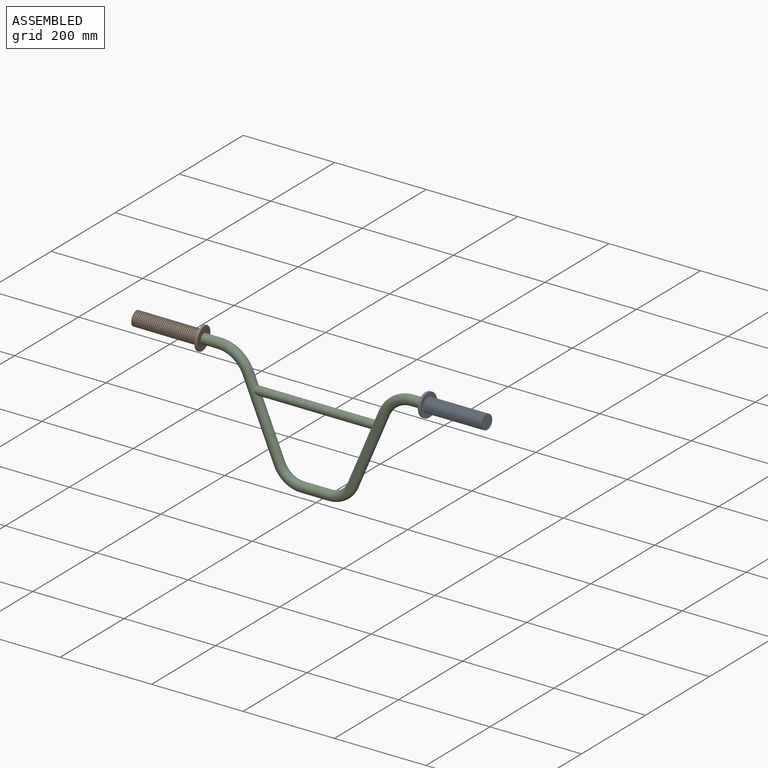
[diagram: assembled view]
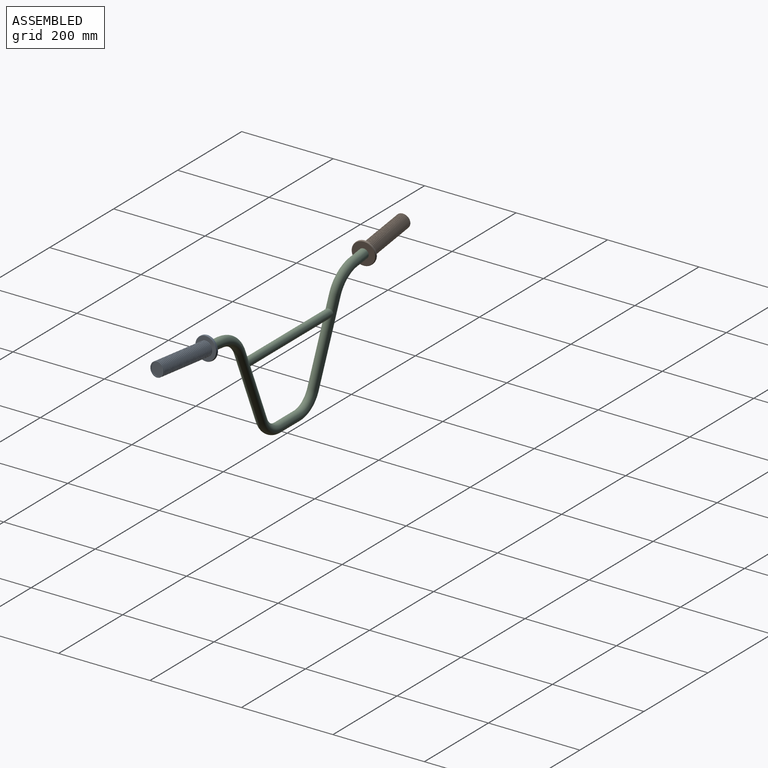
[diagram: assembled view, second angle]
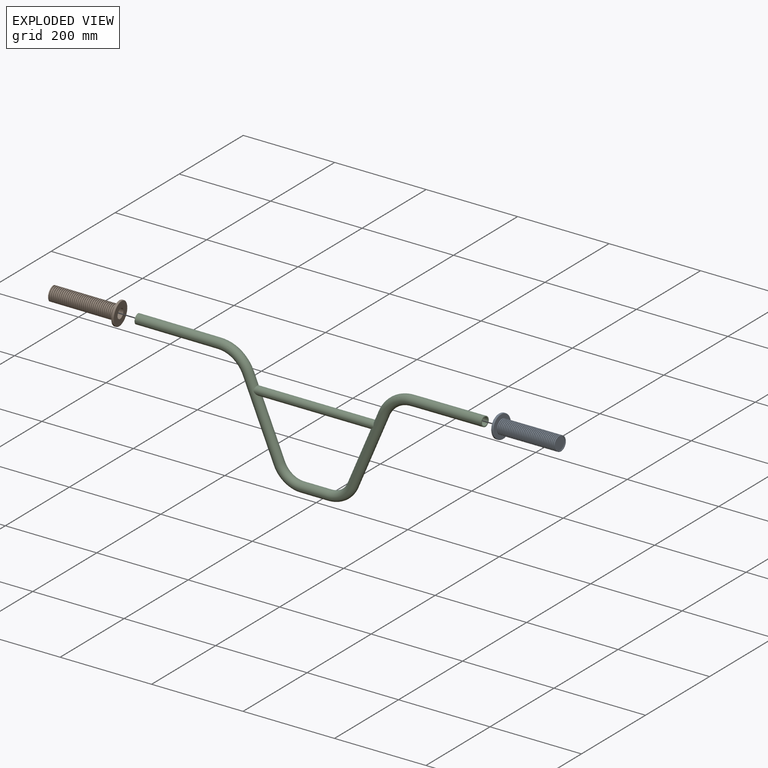
[diagram: exploded view]
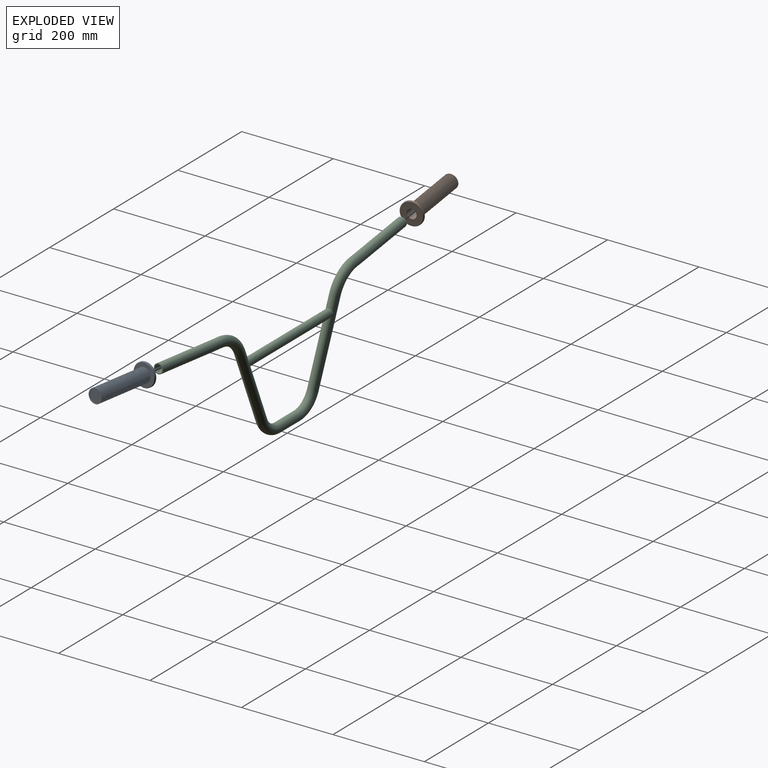
[diagram: exploded view, second angle]
FCSTD DOCUMENT  (FreeCAD 1.0R39285 (Git))
Label: Assably for handle and grip
License: All rights reserved
LicenseURL: https://en.wikipedia.org/wiki/All_rights_reserved
objects: App::Link×3, App::FeaturePython×3, Assembly::JointGroup×1, Assembly::AssemblyObject×1
EXTERNAL_REF file=Bike_Handlebar.FCStd obj=Part
EXTERNAL_REF file=Handle_Grip.FCStd obj=Body

FEATURE [App::Link] HandleBar
  LinkedObject = -> <external Bike_Handlebar.FCStd>#Part
FEATURE [App::FeaturePython] GroundedJoint  # Assembly grounded joint (typed FeaturePython)
  ObjectToGround = -> HandleBar
FEATURE [App::Link] Body
  LinkPlacement = pos=(243.707,-3.77464,237.857) rot=(0.997469,-0.069124,-0.016671;1.59141rad)
  LinkedObject = -> <external Handle_Grip.FCStd>#Body
  Placement = pos=(243.707,-3.77464,237.857) rot=(0.997469,-0.069124,-0.016671;1.59141rad)
FEATURE [App::Link] Body001
  LinkPlacement = pos=(-243.707,-3.77464,237.857) rot=(-0.049382,0.712598,-0.699832;3.11777rad)
  LinkedObject = -> <external Handle_Grip.FCStd>#Body
  Placement = pos=(-243.707,-3.77464,237.857) rot=(-0.049382,0.712598,-0.699832;3.11777rad)
FEATURE [App::FeaturePython] Joint  label="Fixed"  # Assembly joint (typed FeaturePython)
  Activated = true
  AngleMax = 0
  AngleMin = 0
  Detach1 = false
  Detach2 = false
  Distance = 0
  Distance2 = 0
  EnableAngleMax = false
  EnableAngleMin = false
  EnableLengthMax = false
  EnableLengthMin = false
  JointType = 0 (Fixed)
  LengthMax = 0
  LengthMin = 0
  Placement1 = pos=(137,0,-1.07e-14) rot=(-0.707107,0,0.707107;3.14159rad)
  Placement2 = pos=(380,-15.6987,245) rot=(-0.616816,-0.576865,0.535504;2.06595rad)
  Reference1 = -> Assembly [Body.Face5,Body.Face5]
  Reference2 = -> Assembly [HandleBar.Body.Face3,HandleBar.Body.Edge2]
FEATURE [App::FeaturePython] Joint001  label="Fixed001"  # Assembly joint (typed FeaturePython)
  Activated = true
  AngleMax = 0
  AngleMin = 0
  Detach1 = false
  Detach2 = false
  Distance = 0
  Distance2 = 0
  EnableAngleMax = false
  EnableAngleMin = false
  EnableLengthMax = false
  EnableLengthMin = false
  JointType = 0 (Fixed)
  LengthMax = 0
  LengthMin = 0
  Placement1 = pos=(137,0,0) rot=(-0.707107,0,0.707107;3.14159rad)
  Placement2 = pos=(-380,-15.6987,245) rot=(-0.529448,-0.589729,0.60984;2.10494rad)
  Reference1 = -> Assembly [Body001.Face5,Body001.Face5]
  Reference2 = -> Assembly [HandleBar.Body.Face27,HandleBar.Body.Edge2]
FEATURE [Assembly::JointGroup] Joints
  Group = -> [GroundedJoint,Joint,Joint001]
FEATURE [Assembly::AssemblyObject] Assembly
  Group = -> [Joints,HandleBar,GroundedJoint,Body,Body001,Joint,Joint001]
  Origin = -> Origin
  Type = Assembly

RESOLVED EXTERNAL PARTS (link-assembly join: the EXTERNAL_REF files above that resolve inside this repo's crawl, each included once):
---- part Bike_Handlebar.FCStd = doc fcstd_748c10e31682 ----
FCSTD DOCUMENT  (FreeCAD 1.0R39285 (Git))
Label: Bike_Handlebar
License: All rights reserved
LicenseURL: https://en.wikipedia.org/wiki/All_rights_reserved
objects: Sketcher::SketchObject×4, PartDesign::SubShapeBinder×3, PartDesign::Body×2, PartDesign::Pad×2, Part::FeaturePython×1, App::DocumentObjectGroup×1, PartDesign::AdditivePipe×1, PartDesign::Mirrored×1, App::Part×1
note: 25 computed .brp shape members not serialized (recipe doc carries the construction recipe); baked Part::Feature solids carry a one-line shape summary decoded from their .brp

FEATURE [Sketcher::SketchObject] Sketch  label="Front"
  ArcFitTolerance = 1e-06
  FullyConstrained = true
  MakeInternals = false
  Placement = pos=(0,0,0) rot=(1,0,0;1.5708rad)
  sketch-geometry (5):
    g0: LineSegment StartX=0 StartY=0 StartZ=0 EndX=30 EndY=6.7146e-12 EndZ=0
    g1: ArcOfCircle CenterX=30 CenterY=55 CenterZ=0 NormalX=0 NormalY=0 NormalZ=1 AngleXU=0 Radius=55 StartAngle=4.71239 EndAngle=5.88176
    g2: LineSegment StartX=80.6278 StartY=33.5098 StartZ=0 EndX=148.54 EndY=193.502 EndZ=0
    g3: ArcOfCircle CenterX=212.976 CenterY=166.151 CenterZ=0 NormalX=0 NormalY=0 NormalZ=1 AngleXU=0 Radius=70 StartAngle=1.62316 EndAngle=2.74017
    g4: LineSegment StartX=209.312 StartY=236.055 StartZ=0 EndX=380 EndY=245 EndZ=0
  constraints (13):
    c: Distance(g0) = 30
    c: Coincident(g0,g-1)
    c: PointOnObject(g0,g-1)
    c: Tangent(g0,g1) = -1.5708
    c: Tangent(g1,g2) = -1.5708
    c: Tangent(g2,g3) = 1.5708
    c: Tangent(g3,g4) = 1.5708
    c: DistanceX(g0,g4) = 380
    c: DistanceY(g0,g4) = 245
    c: Radius(g3) = 70
    c: Angle(g-1,g4) = 0.0523599
    c: Radius(g1) = 55
    c: Angle(g-1,g2) = 1.16937
FEATURE [Sketcher::SketchObject] Sketch001  label="Top"
  ArcFitTolerance = 1e-06
  ExternalGeometry = -> [Sketch]
  FullyConstrained = true
  MakeInternals = false
  sketch-geometry (3):
    g0: LineSegment StartX=0 StartY=0 StartZ=0 EndX=170 EndY=0 EndZ=0
    g1: ArcOfCircle CenterX=170 CenterY=-700 CenterZ=0 NormalX=0 NormalY=0 NormalZ=1 AngleXU=0 Radius=700 StartAngle=1.48353 EndAngle=1.5708
    g2: LineSegment StartX=231.009 StartY=-2.66371 StartZ=0 EndX=380 EndY=-15.6987 EndZ=0
  constraints (8):
    c: Coincident(g-1,g0)
    c: PointOnObject(g0,g-1)
    c: Tangent(g0,g1) = 1.5708
    c: Tangent(g1,g2) = 1.5708
    c: DistanceX(g0,g0) = 170
    c: Radius(g1) = 700
    c: Angle(g2,g-1) = 0.0872665
    c: Vertical(g2,g-3)
FEATURE [Part::FeaturePython] Mixed_curve  # WARN: FeaturePython — macro-defined, semantics opaque (R4)
  Active = false
  ApproxTolerance = 0.001
  Continuity = 5
  DegreeMax = 5
  DegreeMin = 3
  Direction1 = (0,0,0)
  Direction2 = (0,0,0)
  FillFace1 = false
  FillFace2 = false
  Parametrization = 0
  Samples = 100
  Shape1 = -> Sketch001
  Shape2 = -> Sketch
FEATURE [App::DocumentObjectGroup] Group  label="Sketches"
  Group = -> [Sketch,Sketch001,Mixed_curve]
FEATURE [Sketcher::SketchObject] Sketch002
  ArcFitTolerance = 1e-06
  AttachmentSupport = -> [YZ_Plane]
  FullyConstrained = true
  MakeInternals = false
  MapMode = 5
  Placement = pos=(0,0,0) rot=(0.57735,0.57735,0.57735;2.0944rad)
  sketch-geometry (2):
    g0: Circle CenterX=0 CenterY=0 CenterZ=0 NormalX=0 NormalY=0 NormalZ=1 AngleXU=0 Radius=10.5
    g1: Circle CenterX=0 CenterY=0 CenterZ=0 NormalX=0 NormalY=0 NormalZ=1 AngleXU=0 Radius=8.5
  constraints (4):
    c: Diameter(g0) = 21
    c: Coincident(g0,g-1)
    c: Diameter(g1) = 17
    c: Coincident(g1,g0)
FEATURE [PartDesign::SubShapeBinder] Binder
  BindCopyOnChange = 0
  BindMode = 0
  ClaimChildren = false
  Context = -> Part [Body.Binder.]
  Fuse = false
  MakeFace = true
  OffsetFill = false
  OffsetIntersection = false
  OffsetJoinType = 0
  OffsetOpenResult = false
  PartialLoad = false
  Refine = true
  Relative = true
  Support = -> [Mixed_curve]
  _Version = 2
FEATURE [PartDesign::AdditivePipe] AdditivePipe
  AuxilleryCurvelinear = true
  AuxillerySpineTangent = false
  Binormal = (0,0,0)
  Mode = 0
  Placement = pos=(0,0,0) rot=(1,1,1;2.0944rad)
  Profile = -> Sketch002
  Refine = true
  Spine = -> Binder
  SpineTangent = false
  Suppressed = false
  Transformation = 0
  Transition = 0
FEATURE [PartDesign::Mirrored] Mirrored
  BaseFeature = -> AdditivePipe
  MirrorPlane = -> YZ_Plane
  Placement = pos=(0,0,0) rot=(1,1,1;2.0944rad)
  Refine = true
  Suppressed = false
  TransformMode = 1
FEATURE [Sketcher::SketchObject] Sketch003
  ArcFitTolerance = 1e-06
  AttachmentSupport = -> [YZ_Plane001]
  FullyConstrained = true
  MakeInternals = false
  MapMode = 5
  Placement = pos=(0,0,0) rot=(0.57735,0.57735,0.57735;2.0944rad)
  sketch-geometry (2):
    g0: Circle CenterX=0 CenterY=165 CenterZ=0 NormalX=0 NormalY=0 NormalZ=1 AngleXU=0 Radius=9
    g1: Circle CenterX=0 CenterY=165 CenterZ=0 NormalX=0 NormalY=0 NormalZ=1 AngleXU=0 Radius=7
  constraints (5):
    c: Diameter(g0) = 18
    c: PointOnObject(g0,g-2)
    c: Diameter(g1) = 14
    c: Coincident(g1,g0)
    c: DistanceY(g-1,g0) = 165
FEATURE [PartDesign::SubShapeBinder] Binder001
  BindCopyOnChange = 0
  BindMode = 0
  ClaimChildren = false
  Context = -> Body [Binder001.]
  Fuse = false
  MakeFace = true
  OffsetFill = false
  OffsetIntersection = false
  OffsetJoinType = 0
  OffsetOpenResult = false
  PartialLoad = false
  Refine = true
  Relative = true
  _Version = 2
FEATURE [PartDesign::Body] Body  label="Long Tube"
  AllowCompound = false
  Group = -> [Sketch002,Binder,AdditivePipe,Mirrored,Binder001]
  Origin = -> Origin
  Tip = -> Mirrored
FEATURE [PartDesign::SubShapeBinder] Binder002
  BindCopyOnChange = 0
  BindMode = 0
  ClaimChildren = false
  Context = -> Part [Body001.Binder002.]
  Fuse = false
  MakeFace = true
  OffsetFill = false
  OffsetIntersection = false
  OffsetJoinType = 0
  OffsetOpenResult = false
  PartialLoad = false
  Refine = true
  Relative = true
  Support = -> [Body]
  _Version = 2
FEATURE [PartDesign::Pad] Pad
  Direction = (1,0,0)
  Length = 10
  Length2 = 10
  Placement = pos=(0,0,0) rot=(1,1,1;2.0944rad)
  Profile = -> Sketch003
  ReferenceAxis = -> Sketch003 [N_Axis]
  Refine = true
  Suppressed = false
  Type = 3
  UpToFace = -> Binder002 [Face10]
FEATURE [PartDesign::Pad] Pad001
  BaseFeature = -> Pad
  Direction = (1,0,0)
  Length = 10
  Length2 = 10
  Placement = pos=(0,0,0) rot=(1,1,1;2.0944rad)
  Profile = -> Sketch003
  ReferenceAxis = -> Sketch003 [N_Axis]
  Refine = true
  Suppressed = false
  Type = 3
  UpToFace = -> Binder002 [Face16]
FEATURE [PartDesign::Body] Body001  label="Small Tube"
  AllowCompound = false
  Group = -> [Sketch003,Binder002,Pad,Pad001]
  Origin = -> Origin001
  Tip = -> Pad001
FEATURE [App::Part] Part  label="HandleBar"
  Group = -> [Sketch001,Sketch,Mixed_curve,Group,Body,Body001]
  Origin = -> Origin002
---- part Handle_Grip.FCStd = doc fcstd_68ae29d7f4b0 ----
FCSTD DOCUMENT  (FreeCAD 1.0R39285 (Git))
Label: Handle_Grip
License: All rights reserved
LicenseURL: https://en.wikipedia.org/wiki/All_rights_reserved
objects: Sketcher::SketchObject×2, PartDesign::Revolution×1, PartDesign::Fillet×1, PartDesign::Pad×1, PartDesign::LinearPattern×1, PartDesign::Body×1
note: 16 computed .brp shape members not serialized (recipe doc carries the construction recipe); baked Part::Feature solids carry a one-line shape summary decoded from their .brp

FEATURE [Sketcher::SketchObject] Sketch
  ArcFitTolerance = 1e-06
  AttachmentSupport = -> [XZ_Plane]
  FullyConstrained = true
  MakeInternals = false
  MapMode = 5
  Placement = pos=(0,0,0) rot=(1,0,0;1.5708rad)
  sketch-geometry (9):
    g0: GeomPoint X=140 Y=0 Z=0
    g1: LineSegment StartX=140 StartY=0 StartZ=0 EndX=137 EndY=0 EndZ=0
    g2: LineSegment StartX=137 StartY=0 StartZ=0 EndX=137 EndY=10.5 EndZ=0
    g3: LineSegment StartX=140 StartY=0 StartZ=0 EndX=140 EndY=13.5 EndZ=0
    g4: LineSegment StartX=137 StartY=10.5 StartZ=0 EndX=0 EndY=10.5 EndZ=0
    g5: LineSegment StartX=0 StartY=10.5 StartZ=0 EndX=0 EndY=25 EndZ=0
    g6: LineSegment StartX=0 StartY=25 StartZ=0 EndX=5 EndY=25 EndZ=0
    g7: LineSegment StartX=5 StartY=25 StartZ=0 EndX=5 EndY=13.5 EndZ=0
    g8: LineSegment StartX=5 StartY=13.5 StartZ=0 EndX=140 EndY=13.5 EndZ=0
  constraints (25):
    c: PointOnObject(g0,g-1)
    c: DistanceX(g-1,g0) = 140
    c: Distance(g1) = 3
    c: Coincident(g1,g0)
    c: PointOnObject(g1,g-1)
    c: Distance(g2) = 10.5
    c: Coincident(g2,g1)
    c: Vertical(g2)
    c: Distance(g3) = 13.5
    c: Coincident(g3,g0)
    c: Vertical(g3)
    c: Coincident(g4,g2)
    c: PointOnObject(g4,g-2)
    c: Horizontal(g4)
    c: Distance(g5) = 14.5
    c: Coincident(g5,g4)
    c: PointOnObject(g5,g-2)
    c: Distance(g6) = 5
    c: Coincident(g6,g5)
    c: Horizontal(g6)
    c: Distance(g7) = 11.5
    c: Coincident(g7,g6)
    c: Vertical(g7)
    c: Coincident(g8,g7)
    c: Coincident(g8,g3)
FEATURE [PartDesign::Revolution] Revolution
  Angle = 360
  Angle2 = 60
  Axis = (1,0,0)
  Base = (0,0,0)
  Placement = pos=(0,0,0) rot=(1,0,0;1.5708rad)
  Profile = -> Sketch
  ReferenceAxis = -> X_Axis
  Refine = true
  Suppressed = false
  Type = 0
FEATURE [PartDesign::Fillet] Fillet
  Base = -> Revolution [Face4]
  BaseFeature = -> Revolution
  Placement = pos=(0,0,0) rot=(1,0,0;1.5708rad)
  Radius = 1
  Refine = true
  SupportTransform = false
  Suppressed = false
  UseAllEdges = false
FEATURE [Sketcher::SketchObject] Sketch001
  ArcFitTolerance = 1e-06
  AttachmentSupport = -> [Fillet]
  ExternalGeometry = -> [Fillet]
  FullyConstrained = false
  MakeInternals = false
  MapMode = 5
  Placement = pos=(140,0,0) rot=(0.707107,0,0.707107;3.14159rad)
  sketch-geometry (2):
    g0: Circle CenterX=0 CenterY=0 CenterZ=0 NormalX=0 NormalY=0 NormalZ=1 AngleXU=0 Radius=15.5
    g1: Circle CenterX=0 CenterY=0 CenterZ=0 NormalX=0 NormalY=0 NormalZ=1 AngleXU=0 Radius=13.5
  constraints (3):
    c: Diameter(g0) = 31
    c: Coincident(g0,g-1)
    c: Coincident(g1,g0)
FEATURE [PartDesign::Pad] Pad
  BaseFeature = -> Fillet
  Direction = (1,0,-2e-16)
  Length = 2
  Length2 = 10
  Midplane = true
  Placement = pos=(0,0,0) rot=(1,0,0;1.5708rad)
  Profile = -> Sketch001
  ReferenceAxis = -> Sketch001 [N_Axis]
  Refine = true
  Suppressed = false
  Type = 0
FEATURE [PartDesign::LinearPattern] LinearPattern
  BaseFeature = -> Pad
  Direction = -> X_Axis
  Length = 133
  Mode = 0
  Occurrences = 35
  Offset = 3.91176
  Originals = -> [Pad]
  Placement = pos=(0,0,0) rot=(1,0,0;1.5708rad)
  Refine = true
  Reversed = true
  Suppressed = false
  TransformMode = 0
FEATURE [PartDesign::Body] Body
  AllowCompound = false
  Group = -> [Sketch,Revolution,Fillet,Sketch001,Pad,LinearPattern]
  Origin = -> Origin
  Tip = -> LinearPattern
